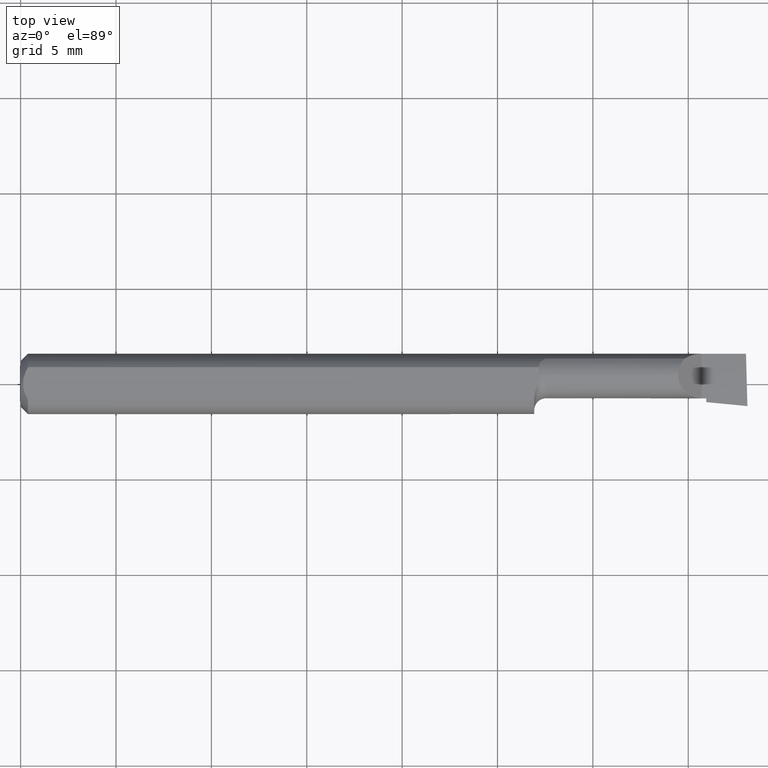
[diagram: clean part render]
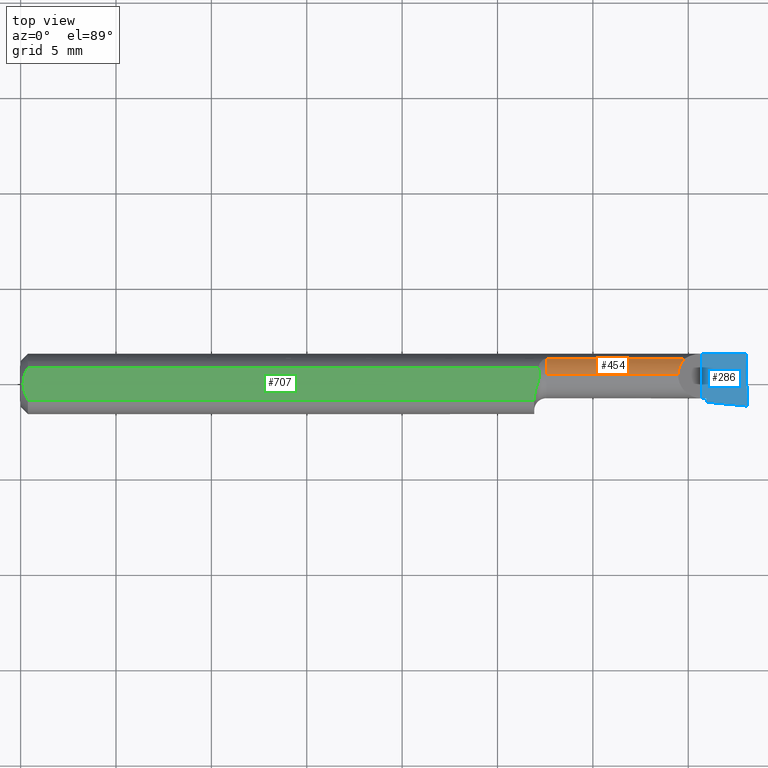
[diagram: same view with three faces highlighted in distinct colors, each labeled with its STEP entity id]
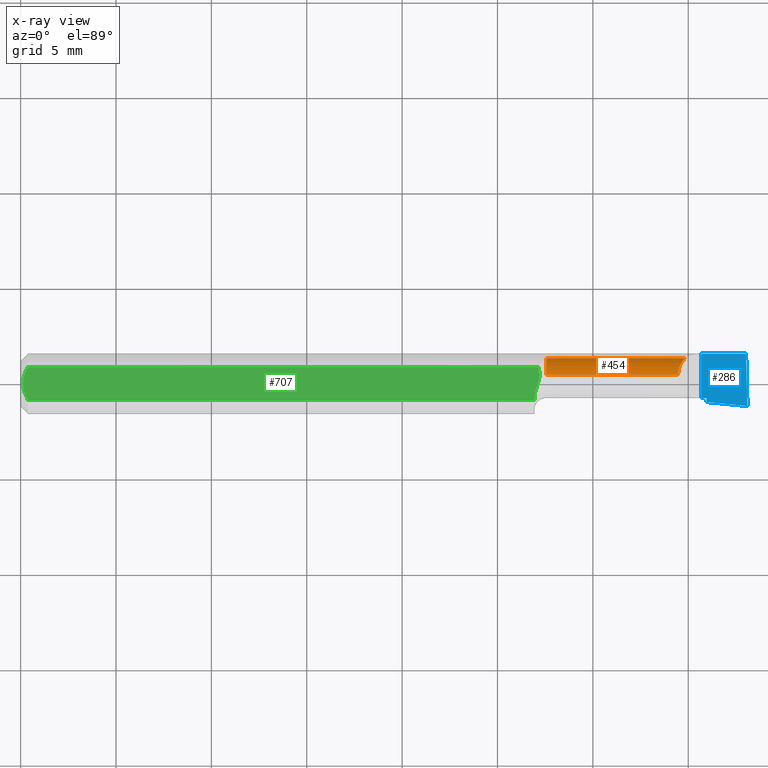
[diagram: x-ray of the same camera — body ghosted, the three highlighted faces saturated]
A machine part, top view with three faces highlighted in distinct colors.
The next image is the same camera in x-ray (body ghosted, the three faces saturated) — at least one of them is partly hidden behind the body in this view.
Their STEP definitions:

[orange] entity #454 — the highlighted cylindrical surface (edge-blend (fillet) strip) has radius 1.2205 mm, axis along (-1, -0, -0).
#39 = LINE ( 'NONE', #763, #364 ) ;
#124 = DIRECTION ( 'NONE',  ( -1.000000000000000000, -0.000000000000000000, -0.000000000000000000 ) ) ;
#131 = EDGE_CURVE ( 'NONE', #305, #272, #558, .T. ) ;
#161 = ORIENTED_EDGE ( 'NONE', *, *, #626, .F. ) ;
#162 = CARTESIAN_POINT ( 'NONE',  ( 1.370749270080770188, 0.05210000000000004211, 0.03425072991922942234 ) ) ;
#190 = ORIENTED_EDGE ( 'NONE', *, *, #551, .F. ) ;
#234 = CARTESIAN_POINT ( 'NONE',  ( 1.361790413321597892, 0.04299473640227064603, 0.04320958667840196776 ) ) ;
#242 = VERTEX_POINT ( 'NONE', #460 ) ;
#272 = VERTEX_POINT ( 'NONE', #691 ) ;
#274 = DIRECTION ( 'NONE',  ( -1.000000000000000000, -0.000000000000000000, -0.000000000000000000 ) ) ;
#296 = AXIS2_PLACEMENT_3D ( 'NONE', #459, #274, #633 ) ;
#305 = VERTEX_POINT ( 'NONE', #329 ) ;
#329 = CARTESIAN_POINT ( 'NONE',  ( 1.356949999999999656, 0.01839999999999999969, 0.04805000000000001631 ) ) ;
#340 = CIRCLE ( 'NONE', #439, 0.04805000000000003713 ) ;
#364 = VECTOR ( 'NONE', #521, 39.37007874015748143 ) ;
#373 = EDGE_LOOP ( 'NONE', ( #452, #190, #597, #161 ) ) ;
#428 = VECTOR ( 'NONE', #746, 39.37007874015748143 ) ;
#439 = AXIS2_PLACEMENT_3D ( 'NONE', #667, #124, #709 ) ;
#452 = ORIENTED_EDGE ( 'NONE', *, *, #131, .F. ) ;
#454 = ADVANCED_FACE ( 'NONE', ( #524 ), #519, .T. ) ;
#459 = CARTESIAN_POINT ( 'NONE',  ( 0.000000000000000000, 0.01839999999999999969, 0.000000000000000000 ) ) ;
#460 = CARTESIAN_POINT ( 'NONE',  ( 1.370749270080770188, 0.05210000000000004211, 0.03425072991922942234 ) ) ;
#475 = CARTESIAN_POINT ( 'NONE',  ( 1.085000000000000187, 0.05209999999999988946, 0.03425072991922960969 ) ) ;
#490 =( BOUNDED_CURVE ( )  B_SPLINE_CURVE ( 3, ( #162, #234, #627, #689 ),
 .UNSPECIFIED., .F., .T. ) 
 B_SPLINE_CURVE_WITH_KNOTS ( ( 4, 4 ),
 ( 5.505891808169000257, 6.283185307179586232 ),
 .UNSPECIFIED. ) 
 CURVE ( )  GEOMETRIC_REPRESENTATION_ITEM ( )  RATIONAL_B_SPLINE_CURVE ( ( 1.000000000000000000, 0.9502818019828911389, 0.9502818019828911389, 1.000000000000000000 ) ) 
 REPRESENTATION_ITEM ( '' )  );
#500 = CARTESIAN_POINT ( 'NONE',  ( 0.000000000000000000, 0.01839999999999999969, 0.04805000000000001631 ) ) ;
#519 = CYLINDRICAL_SURFACE ( 'NONE', #296, 0.04805000000000001631 ) ;
#521 = DIRECTION ( 'NONE',  ( 1.000000000000000000, 0.000000000000000000, 0.000000000000000000 ) ) ;
#524 = FACE_OUTER_BOUND ( 'NONE', #373, .T. ) ;
#551 = EDGE_CURVE ( 'NONE', #242, #305, #490, .T. ) ;
#558 = LINE ( 'NONE', #500, #428 ) ;
#597 = ORIENTED_EDGE ( 'NONE', *, *, #717, .F. ) ;
#626 = EDGE_CURVE ( 'NONE', #272, #723, #340, .T. ) ;
#627 = CARTESIAN_POINT ( 'NONE',  ( 1.356949999999999656, 0.03117368152160946565, 0.04805000000000002325 ) ) ;
#633 = DIRECTION ( 'NONE',  ( 0.000000000000000000, 0.000000000000000000, 1.000000000000000000 ) ) ;
#667 = CARTESIAN_POINT ( 'NONE',  ( 1.085000000000000187, 0.01839999999999999969, 0.000000000000000000 ) ) ;
#689 = CARTESIAN_POINT ( 'NONE',  ( 1.356949999999999656, 0.01839999999999999969, 0.04805000000000001631 ) ) ;
#691 = CARTESIAN_POINT ( 'NONE',  ( 1.085000000000000187, 0.01839999999999999969, 0.04805000000000003713 ) ) ;
#709 = DIRECTION ( 'NONE',  ( 0.000000000000000000, 0.000000000000000000, 1.000000000000000000 ) ) ;
#717 = EDGE_CURVE ( 'NONE', #723, #242, #39, .T. ) ;
#723 = VERTEX_POINT ( 'NONE', #475 ) ;
#746 = DIRECTION ( 'NONE',  ( -1.000000000000000000, -0.000000000000000000, -0.000000000000000000 ) ) ;
#763 = CARTESIAN_POINT ( 'NONE',  ( 1.250000000000000000, 0.05209999999999995191, 0.03425072991922953336 ) ) ;

[blue] entity #286 — the highlighted planar face has unit normal (-0, 0, -1).
#10 = CARTESIAN_POINT ( 'NONE',  ( 2.249639673992802012E-32, -0.02965000000000000968, 1.836970198721035850E-16 ) ) ;
#24 = EDGE_CURVE ( 'NONE', #682, #331, #178, .T. ) ;
#49 = VERTEX_POINT ( 'NONE', #132 ) ;
#54 = ORIENTED_EDGE ( 'NONE', *, *, #24, .F. ) ;
#69 = VECTOR ( 'NONE', #713, 39.37007874015748143 ) ;
#70 = DIRECTION ( 'NONE',  ( -0.000000000000000000, 1.000000000000000000, -0.000000000000000000 ) ) ;
#102 = VECTOR ( 'NONE', #258, 39.37007874015748854 ) ;
#132 = CARTESIAN_POINT ( 'NONE',  ( 1.415000000000000036, -0.02964999999999999927, 1.836970198721035850E-16 ) ) ;
#135 = EDGE_CURVE ( 'NONE', #268, #261, #205, .T. ) ;
#141 = CARTESIAN_POINT ( 'NONE',  ( 1.415000000000000036, -0.2500000000000000555, 1.040949779275254546E-17 ) ) ;
#160 = VECTOR ( 'NONE', #343, 39.37007874015748143 ) ;
#178 = LINE ( 'NONE', #352, #354 ) ;
#186 = AXIS2_PLACEMENT_3D ( 'NONE', #749, #686, #337 ) ;
#205 = LINE ( 'NONE', #317, #102 ) ;
#224 = ORIENTED_EDGE ( 'NONE', *, *, #226, .T. ) ;
#226 = EDGE_CURVE ( 'NONE', #49, #268, #430, .T. ) ;
#247 = ORIENTED_EDGE ( 'NONE', *, *, #730, .F. ) ;
#258 = DIRECTION ( 'NONE',  ( 0.9953961983671787417, -0.09584575252022417557, -1.240050636994885152E-16 ) ) ;
#261 = VERTEX_POINT ( 'NONE', #700 ) ;
#268 = VERTEX_POINT ( 'NONE', #441 ) ;
#286 = ADVANCED_FACE ( 'NONE', ( #387 ), #576, .F. ) ;
#303 = ORIENTED_EDGE ( 'NONE', *, *, #645, .T. ) ;
#314 = VECTOR ( 'NONE', #341, 39.37007874015748143 ) ;
#317 = CARTESIAN_POINT ( 'NONE',  ( 1.519495909102598796, -0.04752724253123513654, -2.387560267896506853E-18 ) ) ;
#331 = VERTEX_POINT ( 'NONE', #588 ) ;
#337 = DIRECTION ( 'NONE',  ( -1.000000000000000000, 0.000000000000000000, 1.224646799147357645E-16 ) ) ;
#341 = DIRECTION ( 'NONE',  ( -0.02677973311239366730, 0.9996413586354002678, 3.234264050030718453E-18 ) ) ;
#343 = DIRECTION ( 'NONE',  ( 1.000000000000000000, 0.000000000000000000, 0.000000000000000000 ) ) ;
#352 = CARTESIAN_POINT ( 'NONE',  ( 1.405000000000000249, -0.2500000000000000555, 1.163414459189988826E-17 ) ) ;
#354 = VECTOR ( 'NONE', #70, 39.37007874015748143 ) ;
#369 = DIRECTION ( 'NONE',  ( 0.000000000000000000, -1.000000000000000000, 0.000000000000000000 ) ) ;
#386 = CARTESIAN_POINT ( 'NONE',  ( 1.497106751185158791, 0.06234999999999988468, 3.401705905475643973E-19 ) ) ;
#387 = FACE_OUTER_BOUND ( 'NONE', #523, .T. ) ;
#395 = CARTESIAN_POINT ( 'NONE',  ( 1.405000000000000249, -0.02965000000000005131, 1.163414459189988826E-17 ) ) ;
#421 = VECTOR ( 'NONE', #369, 39.37007874015748143 ) ;
#430 = LINE ( 'NONE', #141, #421 ) ;
#441 = CARTESIAN_POINT ( 'NONE',  ( 1.415000000000000036, -0.03746543090320940406, 1.835460370743176819E-16 ) ) ;
#482 = LINE ( 'NONE', #653, #160 ) ;
#483 = VERTEX_POINT ( 'NONE', #386 ) ;
#493 = ORIENTED_EDGE ( 'NONE', *, *, #535, .T. ) ;
#523 = EDGE_LOOP ( 'NONE', ( #706, #493, #247, #54, #303, #224 ) ) ;
#535 = EDGE_CURVE ( 'NONE', #261, #483, #703, .T. ) ;
#576 = PLANE ( 'NONE',  #186 ) ;
#588 = CARTESIAN_POINT ( 'NONE',  ( 1.405000000000000249, 0.06234999999999984999, 1.163414459189988826E-17 ) ) ;
#590 = CARTESIAN_POINT ( 'NONE',  ( 1.505470475818720733, -0.2498534495585265913, -6.699400701208952412E-19 ) ) ;
#645 = EDGE_CURVE ( 'NONE', #682, #49, #716, .T. ) ;
#653 = CARTESIAN_POINT ( 'NONE',  ( 2.249639673992802012E-32, 0.06234999999999999570, 1.836970198721035850E-16 ) ) ;
#682 = VERTEX_POINT ( 'NONE', #395 ) ;
#686 = DIRECTION ( 'NONE',  ( -1.224646799147357645E-16, 0.000000000000000000, -1.000000000000000000 ) ) ;
#700 = CARTESIAN_POINT ( 'NONE',  ( 1.500000000000000444, -0.04565000000000024594, 1.878145495644180839E-16 ) ) ;
#703 = LINE ( 'NONE', #590, #314 ) ;
#706 = ORIENTED_EDGE ( 'NONE', *, *, #135, .T. ) ;
#713 = DIRECTION ( 'NONE',  ( 1.000000000000000000, 0.000000000000000000, 0.000000000000000000 ) ) ;
#716 = LINE ( 'NONE', #10, #69 ) ;
#730 = EDGE_CURVE ( 'NONE', #331, #483, #482, .T. ) ;
#749 = CARTESIAN_POINT ( 'NONE',  ( 1.500000000000000222, -0.2500000000000000555, 0.000000000000000000 ) ) ;

[green] entity #707 — the highlighted planar face has unit normal (0, -0, -1).
#1 = ORIENTED_EDGE ( 'NONE', *, *, #345, .F. ) ;
#2 = CARTESIAN_POINT ( 'NONE',  ( 0.004999999999989933504, 7.898418140378181697E-16, 0.05235000000000000070 ) ) ;
#21 = VERTEX_POINT ( 'NONE', #425 ) ;
#28 = B_SPLINE_CURVE_WITH_KNOTS ( 'NONE', 3,
 ( #446, #683, #695, #383, #623, #566, #156, #164, #629, #511 ),
 .UNSPECIFIED., .F., .F.,
 ( 4, 2, 2, 2, 4 ),
 ( 0.008710907782719672435, 0.009350423987949217294, 0.009510303039256602642, 0.009670182090563987989, 0.009989940193178756950 ),
 .UNSPECIFIED. ) ;
#29 = CARTESIAN_POINT ( 'NONE',  ( 1.060000000000000275, -0.03386738844380016850, 0.05235000000000000070 ) ) ;
#34 = B_SPLINE_CURVE_WITH_KNOTS ( 'NONE', 3,
 ( #2, #346, #755, #109, #694, #231 ),
 .UNSPECIFIED., .F., .F.,
 ( 4, 2, 4 ),
 ( 0.003037199019464981685, 0.003488061124369675782, 0.003938923229274369879 ),
 .UNSPECIFIED. ) ;
#42 = B_SPLINE_CURVE_WITH_KNOTS ( 'NONE', 3,
 ( #220, #455, #426, #306, #661, #359 ),
 .UNSPECIFIED., .F., .F.,
 ( 4, 2, 4 ),
 ( 0.002133667072902290657, 0.002585433046183636171, 0.003037199019464981685 ),
 .UNSPECIFIED. ) ;
#51 = DIRECTION ( 'NONE',  ( 0.000000000000000000, 1.000000000000000000, -7.598598113218357399E-17 ) ) ;
#59 = ORIENTED_EDGE ( 'NONE', *, *, #681, .T. ) ;
#68 = DIRECTION ( 'NONE',  ( -1.000000000000000000, -0.000000000000000000, -0.000000000000000000 ) ) ;
#77 = VECTOR ( 'NONE', #321, 39.37007874015748143 ) ;
#84 = VERTEX_POINT ( 'NONE', #310 ) ;
#109 = CARTESIAN_POINT ( 'NONE',  ( 0.009669996313769781138, 0.02323004575534280344, 0.05234999999999997988 ) ) ;
#112 = ORIENTED_EDGE ( 'NONE', *, *, #489, .F. ) ;
#113 = CARTESIAN_POINT ( 'NONE',  ( 0.01500000000000185039, -0.03386738844380016850, 0.05235000000000000070 ) ) ;
#129 = VERTEX_POINT ( 'NONE', #741 ) ;
#137 = CARTESIAN_POINT ( 'NONE',  ( 1.070671187967285887, 0.02367561088766262020, 0.05235000000000000070 ) ) ;
#156 = CARTESIAN_POINT ( 'NONE',  ( 1.068472683586215055, 0.003926807305079060145, 0.05235000000000000070 ) ) ;
#157 = VERTEX_POINT ( 'NONE', #29 ) ;
#163 = EDGE_CURVE ( 'NONE', #129, #84, #316, .T. ) ;
#164 = CARTESIAN_POINT ( 'NONE',  ( 1.070168992803495422, 0.01001120360750445450, 0.05235000000000002152 ) ) ;
#181 = CARTESIAN_POINT ( 'NONE',  ( 0.000000000000000000, -0.03386738844375222768, 0.05234999999999997988 ) ) ;
#208 = CARTESIAN_POINT ( 'NONE',  ( 1.070981797547469361, 0.02106709401679513621, 0.05235000000000000070 ) ) ;
#220 = CARTESIAN_POINT ( 'NONE',  ( 0.01500000000000185039, -0.03386738844380016850, 0.05235000000000000070 ) ) ;
#230 = VERTEX_POINT ( 'NONE', #571 ) ;
#231 = CARTESIAN_POINT ( 'NONE',  ( 0.01500000000000000465, 0.03386738844375223462, 0.05234999999999997988 ) ) ;
#256 = CARTESIAN_POINT ( 'NONE',  ( 1.069639022340448165, 0.02881514518107488459, 0.05234999999999998682 ) ) ;
#269 = CARTESIAN_POINT ( 'NONE',  ( 0.000000000000000000, 0.03386738844375223462, 0.05234999999999997988 ) ) ;
#293 = LINE ( 'NONE', #181, #616 ) ;
#299 = ORIENTED_EDGE ( 'NONE', *, *, #564, .F. ) ;
#300 = EDGE_CURVE ( 'NONE', #614, #129, #28, .T. ) ;
#306 = CARTESIAN_POINT ( 'NONE',  ( 0.006057557792978136152, -0.01187252718384440922, 0.05234999999999998682 ) ) ;
#310 = CARTESIAN_POINT ( 'NONE',  ( 1.068143989668697280, 0.03386738844377058105, 0.05235000000000000070 ) ) ;
#312 = CARTESIAN_POINT ( 'NONE',  ( 1.068925984424407449, 0.03134776901826770434, 0.05235000000000000070 ) ) ;
#316 = B_SPLINE_CURVE_WITH_KNOTS ( 'NONE', 3,
 ( #617, #208, #137, #256, #312, #555 ),
 .UNSPECIFIED., .F., .F.,
 ( 4, 2, 4 ),
 ( 0.0004198065876362512354, 0.0006196366319456719134, 0.0008194666762550926456 ),
 .UNSPECIFIED. ) ;
#321 = DIRECTION ( 'NONE',  ( 0.000000000000000000, 1.000000000000000000, -7.598598113218357399E-17 ) ) ;
#332 = LINE ( 'NONE', #269, #491 ) ;
#345 = EDGE_CURVE ( 'NONE', #157, #462, #293, .T. ) ;
#346 = CARTESIAN_POINT ( 'NONE',  ( 0.004999999999999268051, 0.005945714695019509340, 0.05235000000000000070 ) ) ;
#359 = CARTESIAN_POINT ( 'NONE',  ( 0.004999999999989933504, 7.898418140378181697E-16, 0.05235000000000000070 ) ) ;
#383 = CARTESIAN_POINT ( 'NONE',  ( 1.065733273435468309, -0.004426925067393142239, 0.05235000000000000070 ) ) ;
#425 = CARTESIAN_POINT ( 'NONE',  ( 0.01500000000000000465, 0.03386738844375223462, 0.05234999999999997988 ) ) ;
#426 = CARTESIAN_POINT ( 'NONE',  ( 0.009678036133109300596, -0.02325481837211496039, 0.05235000000000000070 ) ) ;
#437 = ORIENTED_EDGE ( 'NONE', *, *, #494, .F. ) ;
#446 = CARTESIAN_POINT ( 'NONE',  ( 1.060000000000000275, -0.03254879782683794270, 0.05235000000000000070 ) ) ;
#455 = CARTESIAN_POINT ( 'NONE',  ( 0.01216137397042176167, -0.02864146636719541034, 0.05235000000000000070 ) ) ;
#462 = VERTEX_POINT ( 'NONE', #113 ) ;
#474 = CARTESIAN_POINT ( 'NONE',  ( 1.060000000000000275, -0.03254879782683794270, 0.05235000000000000070 ) ) ;
#487 = LINE ( 'NONE', #727, #77 ) ;
#489 = EDGE_CURVE ( 'NONE', #230, #21, #34, .T. ) ;
#491 = VECTOR ( 'NONE', #507, 39.37007874015748143 ) ;
#494 = EDGE_CURVE ( 'NONE', #21, #84, #332, .T. ) ;
#506 = EDGE_LOOP ( 'NONE', ( #59, #509, #612, #437, #112, #299, #1 ) ) ;
#507 = DIRECTION ( 'NONE',  ( 1.000000000000000000, 0.000000000000000000, 0.000000000000000000 ) ) ;
#509 = ORIENTED_EDGE ( 'NONE', *, *, #300, .T. ) ;
#511 = CARTESIAN_POINT ( 'NONE',  ( 1.070981797547136738, 0.01840000000000274402, 0.05235000000000000070 ) ) ;
#555 = CARTESIAN_POINT ( 'NONE',  ( 1.068143989668697280, 0.03386738844377058105, 0.05235000000000000070 ) ) ;
#564 = EDGE_CURVE ( 'NONE', #462, #230, #42, .T. ) ;
#566 = CARTESIAN_POINT ( 'NONE',  ( 1.067828960781367797, 0.001899305342642767461, 0.05235000000000001458 ) ) ;
#567 = AXIS2_PLACEMENT_3D ( 'NONE', #701, #577, #51 ) ;
#571 = CARTESIAN_POINT ( 'NONE',  ( 0.004999999999989933504, 7.898418140378181697E-16, 0.05235000000000000070 ) ) ;
#572 = FACE_OUTER_BOUND ( 'NONE', #506, .T. ) ;
#577 = DIRECTION ( 'NONE',  ( 0.000000000000000000, -7.598598113218357399E-17, -1.000000000000000000 ) ) ;
#583 = PLANE ( 'NONE',  #567 ) ;
#612 = ORIENTED_EDGE ( 'NONE', *, *, #163, .T. ) ;
#614 = VERTEX_POINT ( 'NONE', #474 ) ;
#616 = VECTOR ( 'NONE', #68, 39.37007874015748143 ) ;
#617 = CARTESIAN_POINT ( 'NONE',  ( 1.070981797547136738, 0.01840000000000274402, 0.05235000000000000070 ) ) ;
#623 = CARTESIAN_POINT ( 'NONE',  ( 1.066444481247749154, -0.002321935523631096180, 0.05235000000000000070 ) ) ;
#629 = CARTESIAN_POINT ( 'NONE',  ( 1.070981797547482461, 0.01413224874558612239, 0.05235000000000000070 ) ) ;
#661 = CARTESIAN_POINT ( 'NONE',  ( 0.004999999999998882075, -0.005957634400466951113, 0.05235000000000000070 ) ) ;
#681 = EDGE_CURVE ( 'NONE', #157, #614, #487, .T. ) ;
#683 = CARTESIAN_POINT ( 'NONE',  ( 1.059999999999999609, -0.02370331694302425102, 0.05235000000000000070 ) ) ;
#694 = CARTESIAN_POINT ( 'NONE',  ( 0.01218518006020414754, 0.02868529347538064517, 0.05234999999999998682 ) ) ;
#695 = CARTESIAN_POINT ( 'NONE',  ( 1.062303759621186172, -0.01498943330717220253, 0.05234999999999998682 ) ) ;
#701 = CARTESIAN_POINT ( 'NONE',  ( 1.500000000000000222, 0.1123499999999999915, 0.05234999999999998682 ) ) ;
#707 = ADVANCED_FACE ( 'NONE', ( #572 ), #583, .F. ) ;
#727 = CARTESIAN_POINT ( 'NONE',  ( 1.060000000000000275, 0.1123499999999999915, 0.05234999999999998682 ) ) ;
#741 = CARTESIAN_POINT ( 'NONE',  ( 1.070981797547136738, 0.01840000000000274402, 0.05235000000000000070 ) ) ;
#755 = CARTESIAN_POINT ( 'NONE',  ( 0.006064493299689846517, 0.01189382783781396842, 0.05235000000000000764 ) ) ;